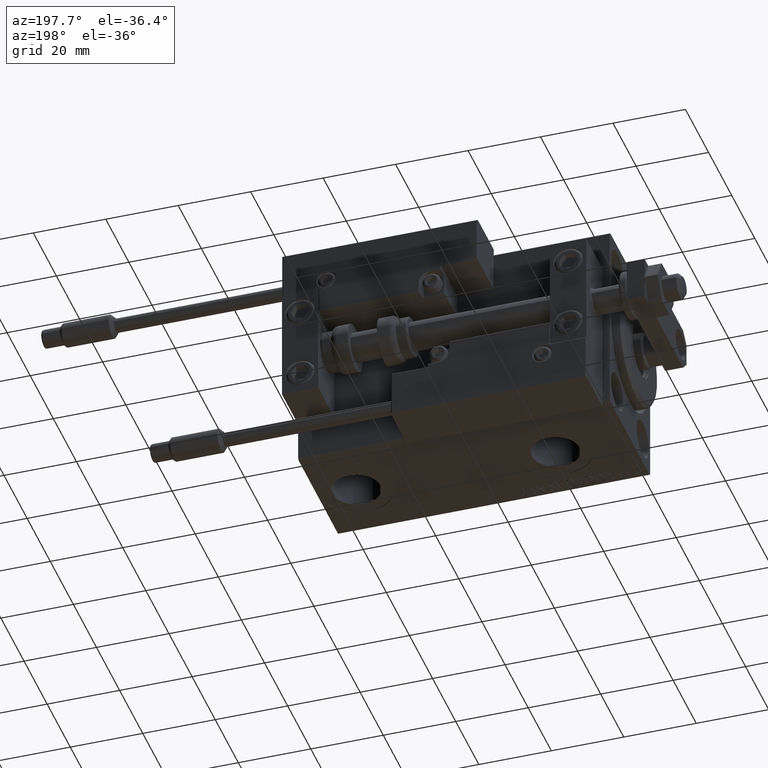
[diagram: clean part render]
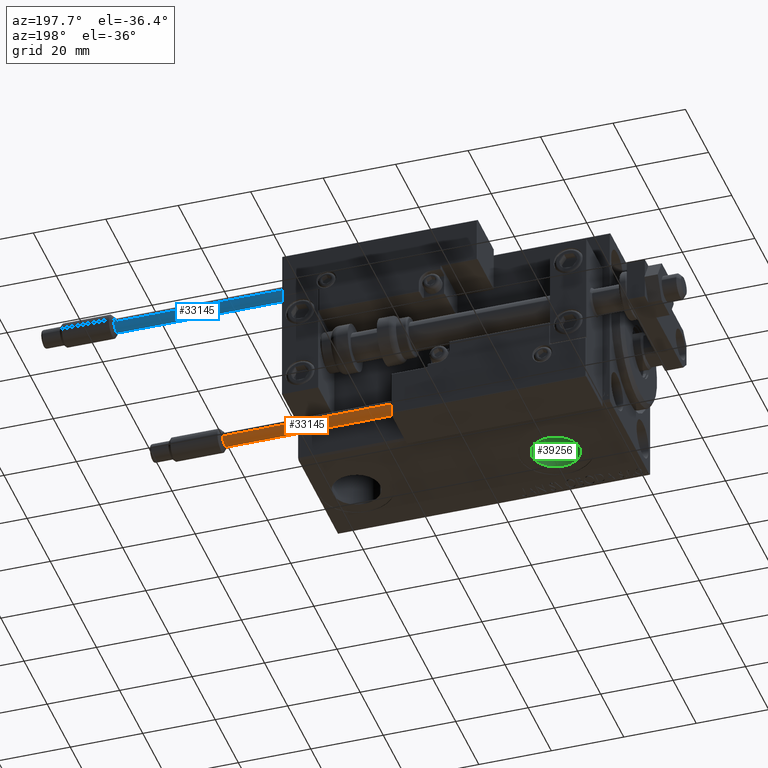
[diagram: same view with three faces highlighted in distinct colors, each labeled with its STEP entity id]
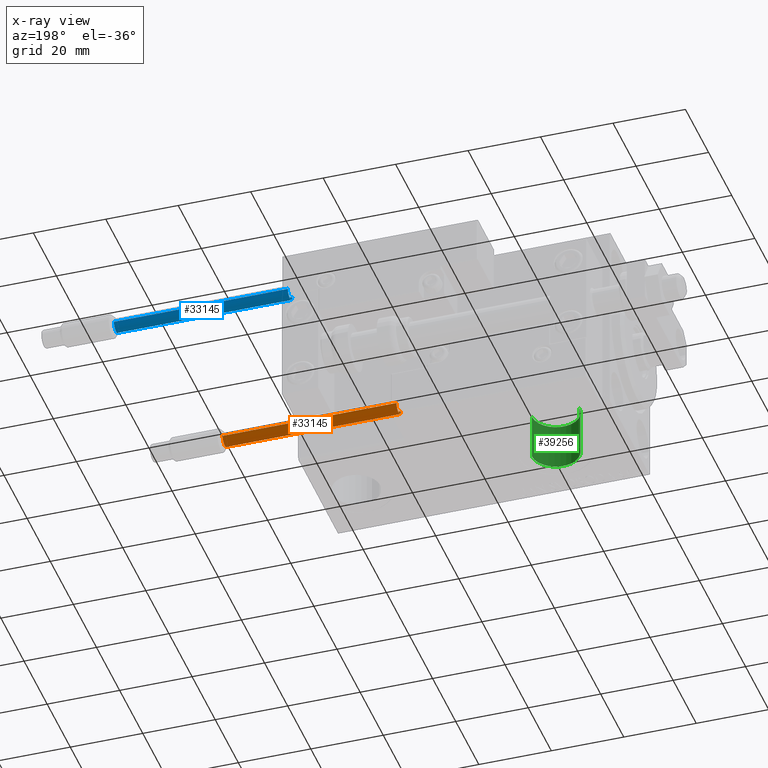
[diagram: x-ray of the same camera — body ghosted, the three highlighted faces saturated]
A machine part, auxiliary view with three faces highlighted in distinct colors.
The next image is the same camera in x-ray (body ghosted, the three faces saturated) — at least one of them is partly hidden behind the body in this view.
Their STEP definitions:

[orange] entity #33145 — the highlighted cylindrical surface (edge-blend (fillet) strip) has radius 1.9 mm, axis along (-1, 0, 0).
#2895 = FACE_OUTER_BOUND ( 'NONE', #47811, .T. ) ;
#4427 = ORIENTED_EDGE ( 'NONE', *, *, #46584, .F. ) ;
#5037 = VERTEX_POINT ( 'NONE', #7794 ) ;
#7175 = ORIENTED_EDGE ( 'NONE', *, *, #22672, .T. ) ;
#7794 = CARTESIAN_POINT ( 'NONE',  ( -1.899999999999999467, 0.000000000000000000, 0.000000000000000000 ) ) ;
#8913 = ORIENTED_EDGE ( 'NONE', *, *, #42433, .T. ) ;
#9936 = CIRCLE ( 'NONE', #35331, 1.899999999999999467 ) ;
#13668 = AXIS2_PLACEMENT_3D ( 'NONE', #26722, #33925, #50034 ) ;
#14408 = DIRECTION ( 'NONE',  ( 1.000000000000000000, 0.000000000000000000, 0.000000000000000000 ) ) ;
#15371 = LINE ( 'NONE', #38699, #44151 ) ;
#16254 = DIRECTION ( 'NONE',  ( -0.000000000000000000, -0.000000000000000000, -1.000000000000000000 ) ) ;
#18821 = CARTESIAN_POINT ( 'NONE',  ( 1.899999999999999467, 2.326828918379970872E-16, 48.00000000000000000 ) ) ;
#19220 = DIRECTION ( 'NONE',  ( -0.000000000000000000, -0.000000000000000000, -1.000000000000000000 ) ) ;
#19725 = CIRCLE ( 'NONE', #28708, 1.899999999999999467 ) ;
#20726 = CARTESIAN_POINT ( 'NONE',  ( 1.899999999999999467, 2.326828918379970872E-16, 0.000000000000000000 ) ) ;
#22126 = CYLINDRICAL_SURFACE ( 'NONE', #13668, 1.899999999999999467 ) ;
#22672 = EDGE_CURVE ( 'NONE', #5037, #27647, #19725, .T. ) ;
#26722 = CARTESIAN_POINT ( 'NONE',  ( 0.000000000000000000, 0.000000000000000000, 48.00000000000000000 ) ) ;
#27647 = VERTEX_POINT ( 'NONE', #20726 ) ;
#28153 = CARTESIAN_POINT ( 'NONE',  ( -1.899999999999999467, 0.000000000000000000, 48.00000000000000000 ) ) ;
#28708 = AXIS2_PLACEMENT_3D ( 'NONE', #33661, #29543, #14408 ) ;
#29543 = DIRECTION ( 'NONE',  ( 0.000000000000000000, 0.000000000000000000, 1.000000000000000000 ) ) ;
#30356 = LINE ( 'NONE', #30614, #45772 ) ;
#30599 = DIRECTION ( 'NONE',  ( 0.000000000000000000, 0.000000000000000000, 1.000000000000000000 ) ) ;
#30614 = CARTESIAN_POINT ( 'NONE',  ( 1.899999999999999467, 2.326828918379970872E-16, 48.00000000000000000 ) ) ;
#30672 = VERTEX_POINT ( 'NONE', #18821 ) ;
#30949 = ORIENTED_EDGE ( 'NONE', *, *, #41226, .F. ) ;
#33145 = ADVANCED_FACE ( 'NONE', ( #2895 ), #22126, .T. ) ;
#33661 = CARTESIAN_POINT ( 'NONE',  ( 0.000000000000000000, 0.000000000000000000, 0.000000000000000000 ) ) ;
#33925 = DIRECTION ( 'NONE',  ( -0.000000000000000000, -0.000000000000000000, -1.000000000000000000 ) ) ;
#35331 = AXIS2_PLACEMENT_3D ( 'NONE', #42109, #30599, #45709 ) ;
#38699 = CARTESIAN_POINT ( 'NONE',  ( -1.899999999999999467, 0.000000000000000000, 48.00000000000000000 ) ) ;
#41226 = EDGE_CURVE ( 'NONE', #30672, #27647, #30356, .T. ) ;
#42109 = CARTESIAN_POINT ( 'NONE',  ( 0.000000000000000000, 0.000000000000000000, 48.00000000000000000 ) ) ;
#42433 = EDGE_CURVE ( 'NONE', #50134, #5037, #15371, .T. ) ;
#44151 = VECTOR ( 'NONE', #19220, 1000.000000000000000 ) ;
#45709 = DIRECTION ( 'NONE',  ( 1.000000000000000000, 0.000000000000000000, 0.000000000000000000 ) ) ;
#45772 = VECTOR ( 'NONE', #16254, 1000.000000000000000 ) ;
#46584 = EDGE_CURVE ( 'NONE', #50134, #30672, #9936, .T. ) ;
#47811 = EDGE_LOOP ( 'NONE', ( #30949, #4427, #8913, #7175 ) ) ;
#50034 = DIRECTION ( 'NONE',  ( -1.000000000000000000, 0.000000000000000000, 0.000000000000000000 ) ) ;
#50134 = VERTEX_POINT ( 'NONE', #28153 ) ;

[blue] entity #33145 — the highlighted cylindrical surface (edge-blend (fillet) strip) has radius 1.9 mm, axis along (-1, 0, 0).
#2895 = FACE_OUTER_BOUND ( 'NONE', #47811, .T. ) ;
#4427 = ORIENTED_EDGE ( 'NONE', *, *, #46584, .F. ) ;
#5037 = VERTEX_POINT ( 'NONE', #7794 ) ;
#7175 = ORIENTED_EDGE ( 'NONE', *, *, #22672, .T. ) ;
#7794 = CARTESIAN_POINT ( 'NONE',  ( -1.899999999999999467, 0.000000000000000000, 0.000000000000000000 ) ) ;
#8913 = ORIENTED_EDGE ( 'NONE', *, *, #42433, .T. ) ;
#9936 = CIRCLE ( 'NONE', #35331, 1.899999999999999467 ) ;
#13668 = AXIS2_PLACEMENT_3D ( 'NONE', #26722, #33925, #50034 ) ;
#14408 = DIRECTION ( 'NONE',  ( 1.000000000000000000, 0.000000000000000000, 0.000000000000000000 ) ) ;
#15371 = LINE ( 'NONE', #38699, #44151 ) ;
#16254 = DIRECTION ( 'NONE',  ( -0.000000000000000000, -0.000000000000000000, -1.000000000000000000 ) ) ;
#18821 = CARTESIAN_POINT ( 'NONE',  ( 1.899999999999999467, 2.326828918379970872E-16, 48.00000000000000000 ) ) ;
#19220 = DIRECTION ( 'NONE',  ( -0.000000000000000000, -0.000000000000000000, -1.000000000000000000 ) ) ;
#19725 = CIRCLE ( 'NONE', #28708, 1.899999999999999467 ) ;
#20726 = CARTESIAN_POINT ( 'NONE',  ( 1.899999999999999467, 2.326828918379970872E-16, 0.000000000000000000 ) ) ;
#22126 = CYLINDRICAL_SURFACE ( 'NONE', #13668, 1.899999999999999467 ) ;
#22672 = EDGE_CURVE ( 'NONE', #5037, #27647, #19725, .T. ) ;
#26722 = CARTESIAN_POINT ( 'NONE',  ( 0.000000000000000000, 0.000000000000000000, 48.00000000000000000 ) ) ;
#27647 = VERTEX_POINT ( 'NONE', #20726 ) ;
#28153 = CARTESIAN_POINT ( 'NONE',  ( -1.899999999999999467, 0.000000000000000000, 48.00000000000000000 ) ) ;
#28708 = AXIS2_PLACEMENT_3D ( 'NONE', #33661, #29543, #14408 ) ;
#29543 = DIRECTION ( 'NONE',  ( 0.000000000000000000, 0.000000000000000000, 1.000000000000000000 ) ) ;
#30356 = LINE ( 'NONE', #30614, #45772 ) ;
#30599 = DIRECTION ( 'NONE',  ( 0.000000000000000000, 0.000000000000000000, 1.000000000000000000 ) ) ;
#30614 = CARTESIAN_POINT ( 'NONE',  ( 1.899999999999999467, 2.326828918379970872E-16, 48.00000000000000000 ) ) ;
#30672 = VERTEX_POINT ( 'NONE', #18821 ) ;
#30949 = ORIENTED_EDGE ( 'NONE', *, *, #41226, .F. ) ;
#33145 = ADVANCED_FACE ( 'NONE', ( #2895 ), #22126, .T. ) ;
#33661 = CARTESIAN_POINT ( 'NONE',  ( 0.000000000000000000, 0.000000000000000000, 0.000000000000000000 ) ) ;
#33925 = DIRECTION ( 'NONE',  ( -0.000000000000000000, -0.000000000000000000, -1.000000000000000000 ) ) ;
#35331 = AXIS2_PLACEMENT_3D ( 'NONE', #42109, #30599, #45709 ) ;
#38699 = CARTESIAN_POINT ( 'NONE',  ( -1.899999999999999467, 0.000000000000000000, 48.00000000000000000 ) ) ;
#41226 = EDGE_CURVE ( 'NONE', #30672, #27647, #30356, .T. ) ;
#42109 = CARTESIAN_POINT ( 'NONE',  ( 0.000000000000000000, 0.000000000000000000, 48.00000000000000000 ) ) ;
#42433 = EDGE_CURVE ( 'NONE', #50134, #5037, #15371, .T. ) ;
#44151 = VECTOR ( 'NONE', #19220, 1000.000000000000000 ) ;
#45709 = DIRECTION ( 'NONE',  ( 1.000000000000000000, 0.000000000000000000, 0.000000000000000000 ) ) ;
#45772 = VECTOR ( 'NONE', #16254, 1000.000000000000000 ) ;
#46584 = EDGE_CURVE ( 'NONE', #50134, #30672, #9936, .T. ) ;
#47811 = EDGE_LOOP ( 'NONE', ( #30949, #4427, #8913, #7175 ) ) ;
#50034 = DIRECTION ( 'NONE',  ( -1.000000000000000000, 0.000000000000000000, 0.000000000000000000 ) ) ;
#50134 = VERTEX_POINT ( 'NONE', #28153 ) ;

[green] entity #39256 — the highlighted cylindrical surface (edge-blend (fillet) strip) has radius 6.58 mm, axis along (-0, -0, -1).
#127 = DIRECTION ( 'NONE',  ( -1.000000000000000000, 0.000000000000000000, 0.000000000000000000 ) ) ;
#1756 = ORIENTED_EDGE ( 'NONE', *, *, #44060, .F. ) ;
#1935 = DIRECTION ( 'NONE',  ( -1.000000000000000000, 0.000000000000000000, 0.000000000000000000 ) ) ;
#2305 = DIRECTION ( 'NONE',  ( 0.000000000000000000, 0.000000000000000000, -1.000000000000000000 ) ) ;
#2892 = EDGE_CURVE ( 'NONE', #27158, #29922, #44699, .T. ) ;
#3691 = EDGE_LOOP ( 'NONE', ( #37852, #44977, #20397, #1756 ) ) ;
#5768 = CARTESIAN_POINT ( 'NONE',  ( 20.50000000000000355, -2.726986211408916281E-15, -14.50000000000000355 ) ) ;
#6915 = CARTESIAN_POINT ( 'NONE',  ( 20.50000000000000355, -2.726986211408916281E-15, -27.40000000000000568 ) ) ;
#10178 = VERTEX_POINT ( 'NONE', #32652 ) ;
#14073 = DIRECTION ( 'NONE',  ( -1.000000000000000000, 0.000000000000000000, 0.000000000000000000 ) ) ;
#18000 = VECTOR ( 'NONE', #21618, 1000.000000000000000 ) ;
#18065 = DIRECTION ( 'NONE',  ( -0.000000000000000000, -0.000000000000000000, -1.000000000000000000 ) ) ;
#20397 = ORIENTED_EDGE ( 'NONE', *, *, #2892, .T. ) ;
#21618 = DIRECTION ( 'NONE',  ( -0.000000000000000000, -0.000000000000000000, -1.000000000000000000 ) ) ;
#25278 = CARTESIAN_POINT ( 'NONE',  ( 27.08000000000000540, -1.921168617569958028E-15, -14.50000000000000355 ) ) ;
#25503 = CYLINDRICAL_SURFACE ( 'NONE', #30154, 6.580000000000002736 ) ;
#25919 = AXIS2_PLACEMENT_3D ( 'NONE', #6915, #2305, #14073 ) ;
#26552 = CARTESIAN_POINT ( 'NONE',  ( 13.92000000000000171, -2.726986211408916281E-15, -14.50000000000000355 ) ) ;
#26780 = DIRECTION ( 'NONE',  ( 0.000000000000000000, 0.000000000000000000, -1.000000000000000000 ) ) ;
#27158 = VERTEX_POINT ( 'NONE', #30046 ) ;
#28055 = EDGE_CURVE ( 'NONE', #10178, #29417, #29575, .T. ) ;
#29417 = VERTEX_POINT ( 'NONE', #26552 ) ;
#29575 = CIRCLE ( 'NONE', #35349, 6.580000000000002736 ) ;
#29922 = VERTEX_POINT ( 'NONE', #40221 ) ;
#30046 = CARTESIAN_POINT ( 'NONE',  ( 27.08000000000000540, -1.921168617569958028E-15, -27.40000000000000568 ) ) ;
#30154 = AXIS2_PLACEMENT_3D ( 'NONE', #5768, #18065, #1935 ) ;
#32652 = CARTESIAN_POINT ( 'NONE',  ( 27.08000000000000540, -1.921168617569958028E-15, -14.50000000000000355 ) ) ;
#35349 = AXIS2_PLACEMENT_3D ( 'NONE', #39070, #26780, #127 ) ;
#37325 = DIRECTION ( 'NONE',  ( -0.000000000000000000, -0.000000000000000000, -1.000000000000000000 ) ) ;
#37512 = CARTESIAN_POINT ( 'NONE',  ( 13.92000000000000171, -2.726986211408916281E-15, -14.50000000000000355 ) ) ;
#37852 = ORIENTED_EDGE ( 'NONE', *, *, #28055, .F. ) ;
#38015 = LINE ( 'NONE', #37512, #18000 ) ;
#39070 = CARTESIAN_POINT ( 'NONE',  ( 20.50000000000000355, -2.726986211408916281E-15, -14.50000000000000355 ) ) ;
#39256 = ADVANCED_FACE ( 'NONE', ( #48313 ), #25503, .F. ) ;
#40221 = CARTESIAN_POINT ( 'NONE',  ( 13.92000000000000171, -2.726986211408916281E-15, -27.40000000000000568 ) ) ;
#40890 = VECTOR ( 'NONE', #37325, 1000.000000000000000 ) ;
#41907 = LINE ( 'NONE', #25278, #40890 ) ;
#43091 = EDGE_CURVE ( 'NONE', #10178, #27158, #41907, .T. ) ;
#44060 = EDGE_CURVE ( 'NONE', #29417, #29922, #38015, .T. ) ;
#44699 = CIRCLE ( 'NONE', #25919, 6.580000000000002736 ) ;
#44977 = ORIENTED_EDGE ( 'NONE', *, *, #43091, .T. ) ;
#48313 = FACE_OUTER_BOUND ( 'NONE', #3691, .T. ) ;